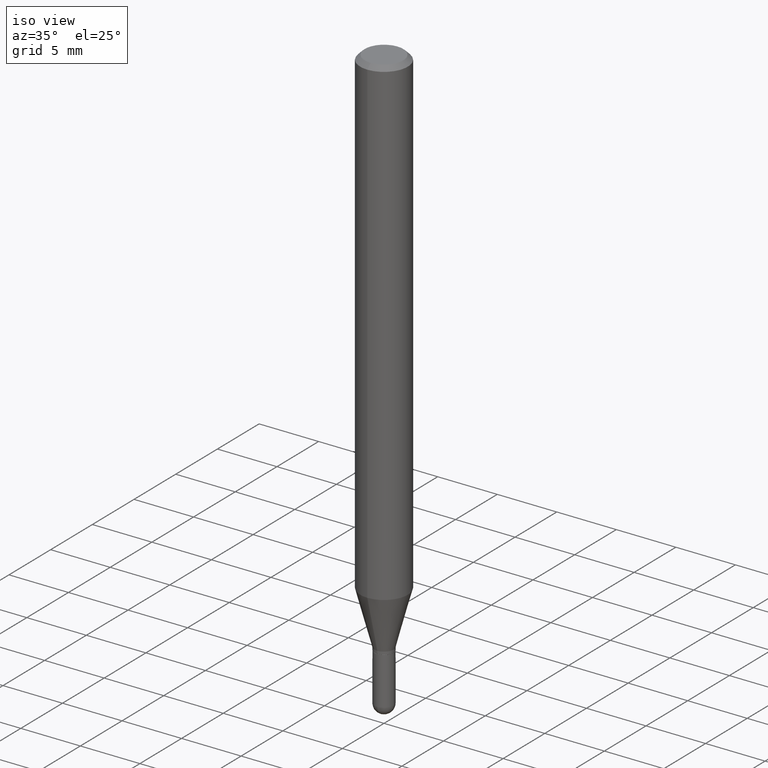
[diagram: clean part render]
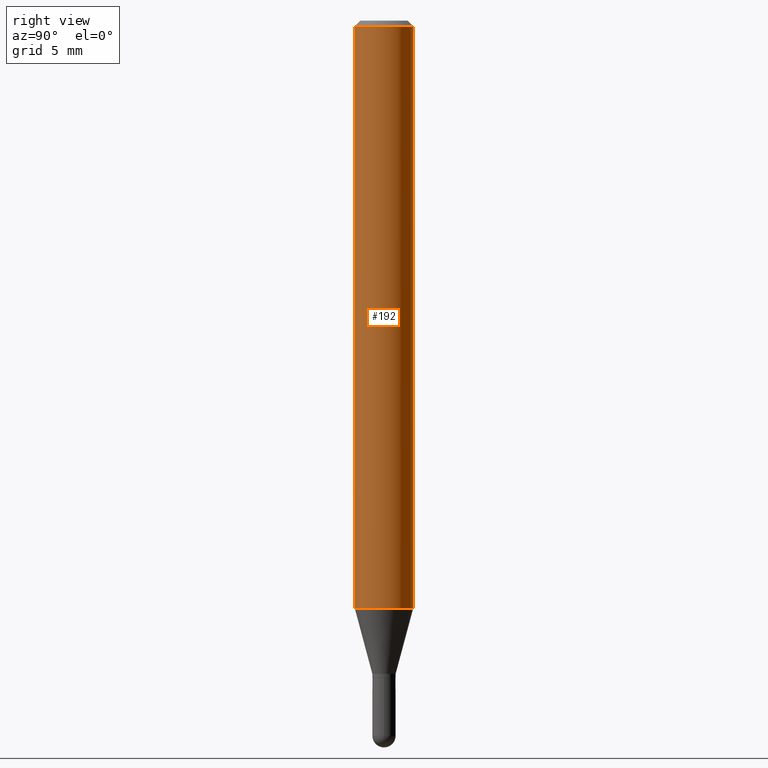
[diagram: tour spotlight — one face highlighted and labeled with its STEP entity id]
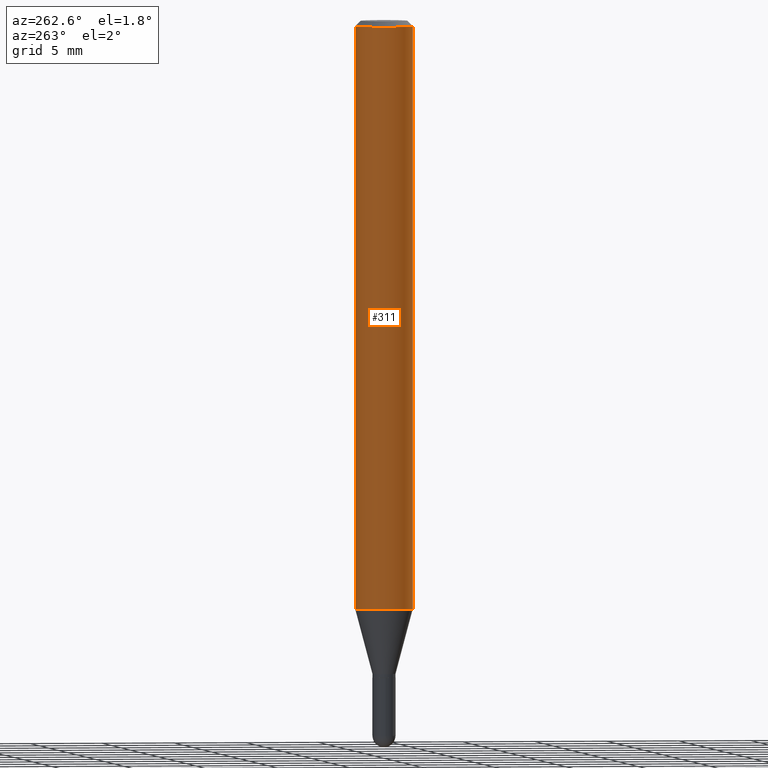
[diagram: tour spotlight — one face highlighted and labeled with its STEP entity id]
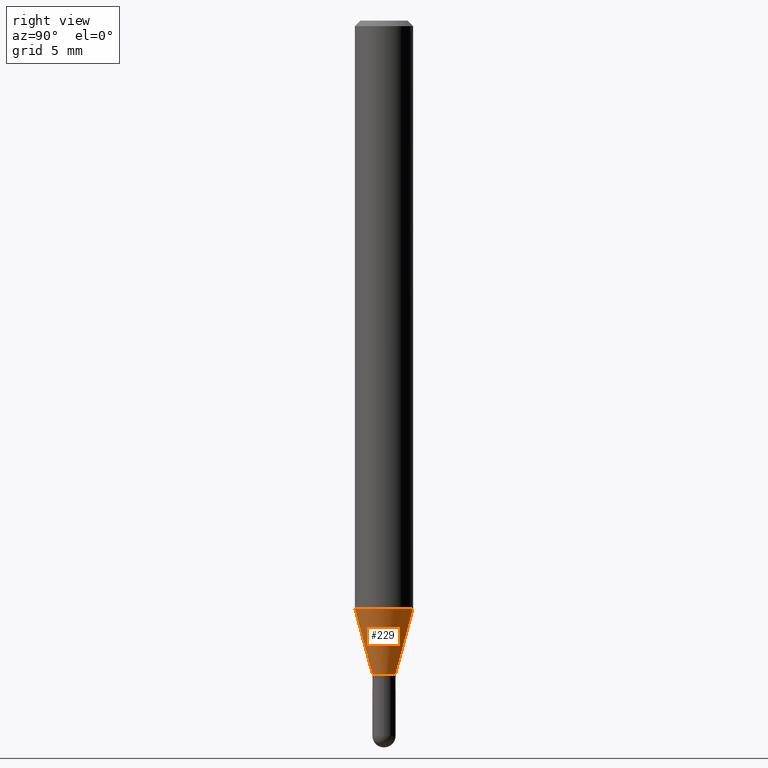
[diagram: tour spotlight — one face highlighted and labeled with its STEP entity id]
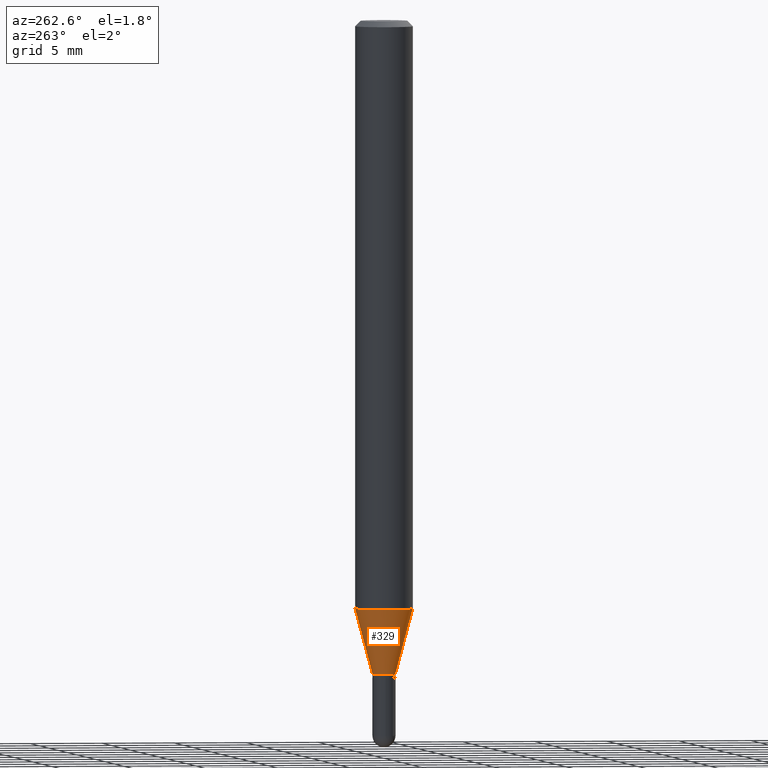
[diagram: tour spotlight — one face highlighted and labeled with its STEP entity id]
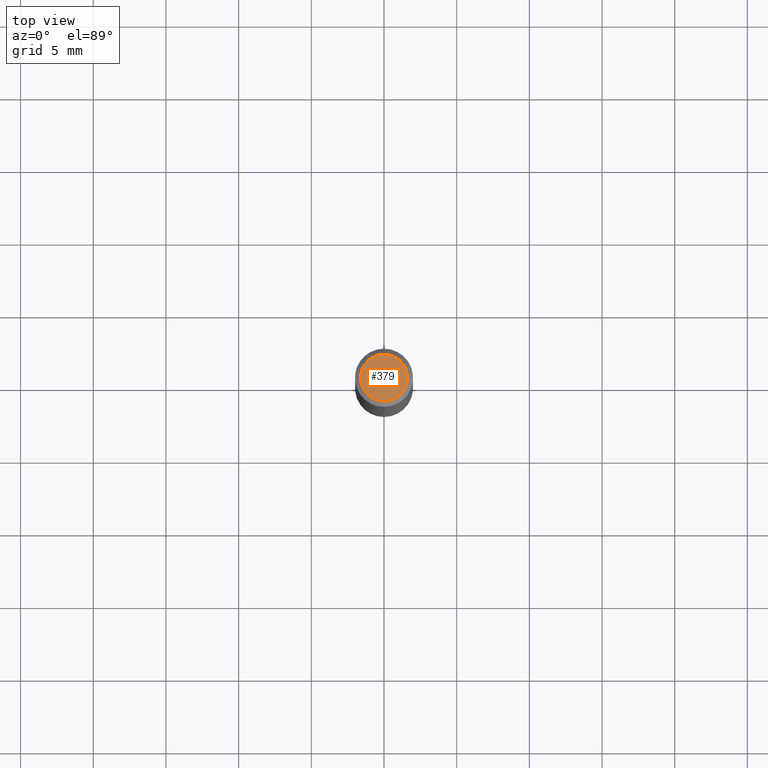
[diagram: tour spotlight — one face highlighted and labeled with its STEP entity id]
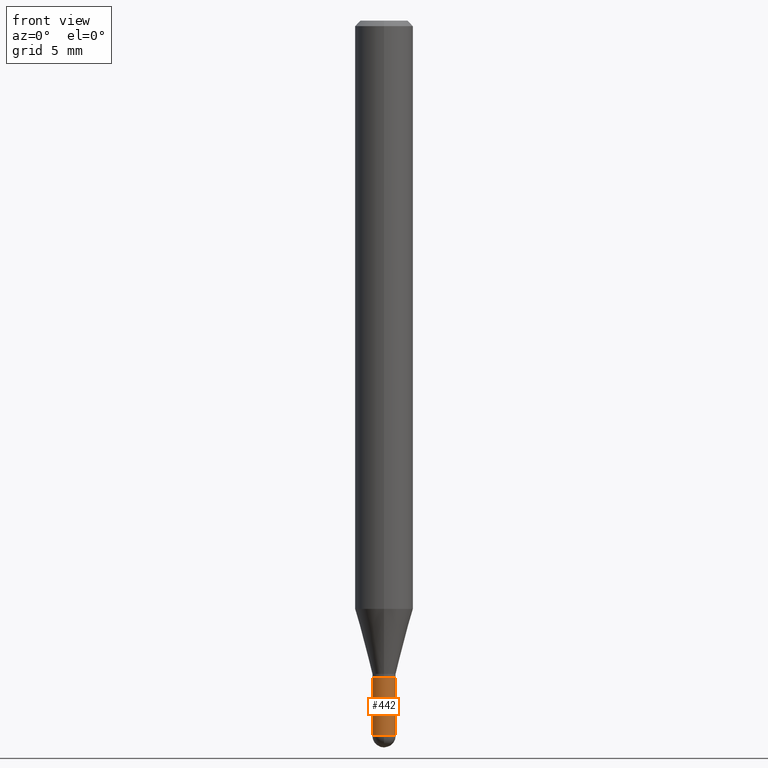
[diagram: tour spotlight — one face highlighted and labeled with its STEP entity id]
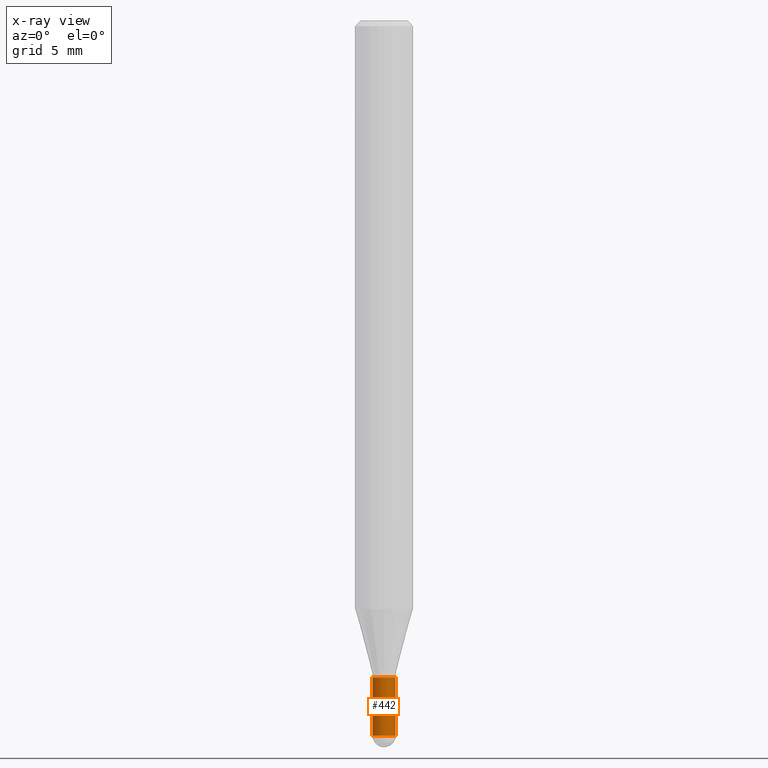
[diagram: x-ray of the same camera — body ghosted, this tour face saturated]
A machine part: a face-by-face anatomy tour. The part has 17 B-rep faces; the first image is the clean iso view, then the 6 largest visible faces are spotlighted one at a time (largest first), each with its STEP entity span.

Face 1 — right view, entity #192. In plain terms, the highlighted cylindrical surface (edge-blend (fillet) strip) has radius 2.0002 mm, axis along (-0, 0, 1).
Definition (entity closure, byte-faithful):
#8 = CARTESIAN_POINT ( 'NONE',  ( 3.668279301993772364E-31, -5.237113039164392563E-17, -0.01500000000000001679 ) ) ;
#10 = CARTESIAN_POINT ( 'NONE',  ( 3.896105367546402533E-29, -5.562374765532584086E-15, -1.593160599342370087 ) ) ;
#23 = VERTEX_POINT ( 'NONE', #470 ) ;
#29 = EDGE_CURVE ( 'NONE', #23, #171, #501, .T. ) ;
#30 = CARTESIAN_POINT ( 'NONE',  ( 5.595524044110787031E-16, 0.07875000000000000056, -2.749484345561302999E-16 ) ) ;
#31 = DIRECTION ( 'NONE',  ( -2.445519534662512469E-29, 3.491408692776257814E-15, 1.000000000000000000 ) ) ;
#36 = CIRCLE ( 'NONE', #488, 0.07875000000000000056 ) ;
#47 = AXIS2_PLACEMENT_3D ( 'NONE', #8, #359, #283 ) ;
#90 = VECTOR ( 'NONE', #121, 39.37007874015748143 ) ;
#102 = VECTOR ( 'NONE', #224, 39.37007874015748143 ) ;
#121 = DIRECTION ( 'NONE',  ( -2.445519534662512469E-29, 3.491408692776257814E-15, 1.000000000000000000 ) ) ;
#137 = DIRECTION ( 'NONE',  ( -2.445519534662512469E-29, 3.491408692776257814E-15, 1.000000000000000000 ) ) ;
#156 = LINE ( 'NONE', #355, #90 ) ;
#160 = EDGE_CURVE ( 'NONE', #335, #378, #156, .T. ) ;
#171 = VERTEX_POINT ( 'NONE', #244 ) ;
#182 = ORIENTED_EDGE ( 'NONE', *, *, #434, .F. ) ;
#192 = ADVANCED_FACE ( 'NONE', ( #305 ), #274, .T. ) ;
#224 = DIRECTION ( 'NONE',  ( -2.445519534662512469E-29, 3.491408692776257814E-15, 1.000000000000000000 ) ) ;
#232 = CARTESIAN_POINT ( 'NONE',  ( 0.000000000000000000, 0.000000000000000000, 0.000000000000000000 ) ) ;
#244 = CARTESIAN_POINT ( 'NONE',  ( 5.595524044111180475E-16, 0.07874999999999994504, -0.01500000000000029261 ) ) ;
#250 = CARTESIAN_POINT ( 'NONE',  ( -5.499083108677930499E-16, -0.07875000000000004219, -0.01499999999999974097 ) ) ;
#271 = CIRCLE ( 'NONE', #47, 0.07875000000000000056 ) ;
#274 = CYLINDRICAL_SURFACE ( 'NONE', #306, 0.07875000000000000056 ) ;
#283 = DIRECTION ( 'NONE',  ( -6.982962677686264344E-15, -1.000000000000000000, 3.496114991891765576E-15 ) ) ;
#305 = FACE_OUTER_BOUND ( 'NONE', #354, .T. ) ;
#306 = AXIS2_PLACEMENT_3D ( 'NONE', #232, #31, #435 ) ;
#327 = DIRECTION ( 'NONE',  ( -6.982962677686264344E-15, -1.000000000000000000, 3.469013325287953293E-15 ) ) ;
#335 = VERTEX_POINT ( 'NONE', #364 ) ;
#345 = ORIENTED_EDGE ( 'NONE', *, *, #510, .T. ) ;
#354 = EDGE_LOOP ( 'NONE', ( #345, #381, #182, #380 ) ) ;
#355 = CARTESIAN_POINT ( 'NONE',  ( -5.499083108677933457E-16, -0.07875000000000000056, 2.749484345561302999E-16 ) ) ;
#359 = DIRECTION ( 'NONE',  ( -2.445519534662512469E-29, 3.491408692776257814E-15, 1.000000000000000000 ) ) ;
#364 = CARTESIAN_POINT ( 'NONE',  ( -5.499083108677546915E-16, -0.07875000000000557943, -1.593160599342369865 ) ) ;
#378 = VERTEX_POINT ( 'NONE', #250 ) ;
#380 = ORIENTED_EDGE ( 'NONE', *, *, #160, .F. ) ;
#381 = ORIENTED_EDGE ( 'NONE', *, *, #29, .T. ) ;
#434 = EDGE_CURVE ( 'NONE', #378, #171, #271, .T. ) ;
#435 = DIRECTION ( 'NONE',  ( -6.982962677686264344E-15, -1.000000000000000000, 3.491408692776257814E-15 ) ) ;
#470 = CARTESIAN_POINT ( 'NONE',  ( 5.595524044111174559E-16, 0.07874999999999439393, -1.593160599342370531 ) ) ;
#488 = AXIS2_PLACEMENT_3D ( 'NONE', #10, #137, #327 ) ;
#501 = LINE ( 'NONE', #30, #102 ) ;
#510 = EDGE_CURVE ( 'NONE', #335, #23, #36, .T. ) ;

Face 2 — auxiliary view, entity #311. In plain terms, the highlighted cylindrical surface (edge-blend (fillet) strip) has radius 2.0002 mm, axis along (-0, 0, 1).
Definition (entity closure, byte-faithful):
#23 = VERTEX_POINT ( 'NONE', #470 ) ;
#29 = EDGE_CURVE ( 'NONE', #23, #171, #501, .T. ) ;
#30 = CARTESIAN_POINT ( 'NONE',  ( 5.595524044110787031E-16, 0.07875000000000000056, -2.749484345561302999E-16 ) ) ;
#65 = EDGE_LOOP ( 'NONE', ( #483, #190, #145, #337 ) ) ;
#82 = AXIS2_PLACEMENT_3D ( 'NONE', #246, #358, #402 ) ;
#90 = VECTOR ( 'NONE', #121, 39.37007874015748143 ) ;
#102 = VECTOR ( 'NONE', #224, 39.37007874015748143 ) ;
#103 = CIRCLE ( 'NONE', #508, 0.07875000000000000056 ) ;
#121 = DIRECTION ( 'NONE',  ( -2.445519534662512469E-29, 3.491408692776257814E-15, 1.000000000000000000 ) ) ;
#145 = ORIENTED_EDGE ( 'NONE', *, *, #160, .T. ) ;
#156 = LINE ( 'NONE', #355, #90 ) ;
#160 = EDGE_CURVE ( 'NONE', #335, #378, #156, .T. ) ;
#171 = VERTEX_POINT ( 'NONE', #244 ) ;
#175 = DIRECTION ( 'NONE',  ( -6.982962677686264344E-15, -1.000000000000000000, 3.496114991891765576E-15 ) ) ;
#177 = DIRECTION ( 'NONE',  ( -2.445519534662512469E-29, 3.491408692776257814E-15, 1.000000000000000000 ) ) ;
#190 = ORIENTED_EDGE ( 'NONE', *, *, #502, .T. ) ;
#204 = CARTESIAN_POINT ( 'NONE',  ( 3.668279301993772364E-31, -5.237113039164392563E-17, -0.01500000000000001679 ) ) ;
#215 = CIRCLE ( 'NONE', #298, 0.07875000000000000056 ) ;
#224 = DIRECTION ( 'NONE',  ( -2.445519534662512469E-29, 3.491408692776257814E-15, 1.000000000000000000 ) ) ;
#244 = CARTESIAN_POINT ( 'NONE',  ( 5.595524044111180475E-16, 0.07874999999999994504, -0.01500000000000029261 ) ) ;
#246 = CARTESIAN_POINT ( 'NONE',  ( 0.000000000000000000, 0.000000000000000000, 0.000000000000000000 ) ) ;
#250 = CARTESIAN_POINT ( 'NONE',  ( -5.499083108677930499E-16, -0.07875000000000004219, -0.01499999999999974097 ) ) ;
#257 = EDGE_CURVE ( 'NONE', #171, #378, #103, .T. ) ;
#289 = DIRECTION ( 'NONE',  ( -6.982962677686264344E-15, -1.000000000000000000, 3.469013325287953293E-15 ) ) ;
#298 = AXIS2_PLACEMENT_3D ( 'NONE', #489, #177, #289 ) ;
#311 = ADVANCED_FACE ( 'NONE', ( #317 ), #446, .T. ) ;
#317 = FACE_OUTER_BOUND ( 'NONE', #65, .T. ) ;
#335 = VERTEX_POINT ( 'NONE', #364 ) ;
#337 = ORIENTED_EDGE ( 'NONE', *, *, #257, .F. ) ;
#355 = CARTESIAN_POINT ( 'NONE',  ( -5.499083108677933457E-16, -0.07875000000000000056, 2.749484345561302999E-16 ) ) ;
#358 = DIRECTION ( 'NONE',  ( -2.445519534662512469E-29, 3.491408692776257814E-15, 1.000000000000000000 ) ) ;
#364 = CARTESIAN_POINT ( 'NONE',  ( -5.499083108677546915E-16, -0.07875000000000557943, -1.593160599342369865 ) ) ;
#378 = VERTEX_POINT ( 'NONE', #250 ) ;
#402 = DIRECTION ( 'NONE',  ( -6.982962677686264344E-15, -1.000000000000000000, 3.491408692776257814E-15 ) ) ;
#407 = DIRECTION ( 'NONE',  ( -2.445519534662512469E-29, 3.491408692776257814E-15, 1.000000000000000000 ) ) ;
#446 = CYLINDRICAL_SURFACE ( 'NONE', #82, 0.07875000000000000056 ) ;
#470 = CARTESIAN_POINT ( 'NONE',  ( 5.595524044111174559E-16, 0.07874999999999439393, -1.593160599342370531 ) ) ;
#483 = ORIENTED_EDGE ( 'NONE', *, *, #29, .F. ) ;
#489 = CARTESIAN_POINT ( 'NONE',  ( 3.896105367546402533E-29, -5.562374765532584086E-15, -1.593160599342370087 ) ) ;
#501 = LINE ( 'NONE', #30, #102 ) ;
#502 = EDGE_CURVE ( 'NONE', #23, #335, #215, .T. ) ;
#508 = AXIS2_PLACEMENT_3D ( 'NONE', #204, #407, #175 ) ;

Face 3 — right view, entity #229. In plain terms, the highlighted conical surface has half-angle 15 deg.
Definition (entity closure, byte-faithful):
#10 = CARTESIAN_POINT ( 'NONE',  ( 3.896105367546402533E-29, -5.562374765532584086E-15, -1.593160599342370087 ) ) ;
#20 = AXIS2_PLACEMENT_3D ( 'NONE', #150, #461, #106 ) ;
#23 = VERTEX_POINT ( 'NONE', #470 ) ;
#24 = ORIENTED_EDGE ( 'NONE', *, *, #105, .F. ) ;
#26 = CARTESIAN_POINT ( 'NONE',  ( -2.199633243470716336E-16, -0.03150000000000582195, -1.769500000000000073 ) ) ;
#36 = CIRCLE ( 'NONE', #488, 0.07875000000000000056 ) ;
#38 = FACE_OUTER_BOUND ( 'NONE', #396, .T. ) ;
#49 = DIRECTION ( 'NONE',  ( -2.445519534662512469E-29, 3.491408692776257814E-15, 1.000000000000000000 ) ) ;
#68 = EDGE_CURVE ( 'NONE', #506, #23, #197, .T. ) ;
#74 = EDGE_CURVE ( 'NONE', #101, #506, #469, .T. ) ;
#101 = VERTEX_POINT ( 'NONE', #26 ) ;
#105 = EDGE_CURVE ( 'NONE', #101, #335, #226, .T. ) ;
#106 = DIRECTION ( 'NONE',  ( -6.982962677686265922E-15, -1.000000000000000000, 0.000000000000000000 ) ) ;
#111 = CARTESIAN_POINT ( 'NONE',  ( -2.199633243470716336E-16, -0.03150000000000582195, -1.769500000000000073 ) ) ;
#132 = VECTOR ( 'NONE', #265, 39.37007874015748143 ) ;
#137 = DIRECTION ( 'NONE',  ( -2.445519534662512469E-29, 3.491408692776257814E-15, 1.000000000000000000 ) ) ;
#150 = CARTESIAN_POINT ( 'NONE',  ( 4.327346816585315421E-29, -6.178047681867588652E-15, -1.769500000000000073 ) ) ;
#153 = CARTESIAN_POINT ( 'NONE',  ( 2.238209617644722851E-16, 0.03149999999999347072, -1.769500000000000073 ) ) ;
#193 = AXIS2_PLACEMENT_3D ( 'NONE', #209, #49, #360 ) ;
#197 = LINE ( 'NONE', #153, #132 ) ;
#209 = CARTESIAN_POINT ( 'NONE',  ( 4.327346816585315421E-29, -6.178047681867588652E-15, -1.769500000000000073 ) ) ;
#212 = CARTESIAN_POINT ( 'NONE',  ( 3.916866830877951170E-16, 0.03149999999999346378, -1.769500000000000073 ) ) ;
#226 = LINE ( 'NONE', #111, #406 ) ;
#229 = ADVANCED_FACE ( 'NONE', ( #38 ), #394, .T. ) ;
#265 = DIRECTION ( 'NONE',  ( 1.839019923739603076E-15, 0.2588190451025253469, 0.9659258262890670910 ) ) ;
#301 = DIRECTION ( 'NONE',  ( -1.807323732225332900E-15, -0.2588190451025185745, 0.9659258262890689783 ) ) ;
#327 = DIRECTION ( 'NONE',  ( -6.982962677686264344E-15, -1.000000000000000000, 3.469013325287953293E-15 ) ) ;
#335 = VERTEX_POINT ( 'NONE', #364 ) ;
#357 = ORIENTED_EDGE ( 'NONE', *, *, #510, .F. ) ;
#360 = DIRECTION ( 'NONE',  ( -6.982962677686265922E-15, -1.000000000000000000, 0.000000000000000000 ) ) ;
#364 = CARTESIAN_POINT ( 'NONE',  ( -5.499083108677546915E-16, -0.07875000000000557943, -1.593160599342369865 ) ) ;
#367 = ORIENTED_EDGE ( 'NONE', *, *, #68, .T. ) ;
#374 = ORIENTED_EDGE ( 'NONE', *, *, #74, .T. ) ;
#394 = CONICAL_SURFACE ( 'NONE', #193, 0.03149999999999964634, 0.2617993877991506846 ) ;
#396 = EDGE_LOOP ( 'NONE', ( #374, #367, #357, #24 ) ) ;
#406 = VECTOR ( 'NONE', #301, 39.37007874015748143 ) ;
#461 = DIRECTION ( 'NONE',  ( -2.445519534662512469E-29, 3.491408692776257814E-15, 1.000000000000000000 ) ) ;
#469 = CIRCLE ( 'NONE', #20, 0.03149999999999964634 ) ;
#470 = CARTESIAN_POINT ( 'NONE',  ( 5.595524044111174559E-16, 0.07874999999999439393, -1.593160599342370531 ) ) ;
#488 = AXIS2_PLACEMENT_3D ( 'NONE', #10, #137, #327 ) ;
#506 = VERTEX_POINT ( 'NONE', #212 ) ;
#510 = EDGE_CURVE ( 'NONE', #335, #23, #36, .T. ) ;

Face 4 — auxiliary view, entity #329. In plain terms, the highlighted conical surface has half-angle 15 deg.
Definition (entity closure, byte-faithful):
#2 = FACE_OUTER_BOUND ( 'NONE', #425, .T. ) ;
#6 = DIRECTION ( 'NONE',  ( -6.982962677686265922E-15, -1.000000000000000000, 0.000000000000000000 ) ) ;
#9 = DIRECTION ( 'NONE',  ( -2.445519534662512469E-29, 3.491408692776257814E-15, 1.000000000000000000 ) ) ;
#23 = VERTEX_POINT ( 'NONE', #470 ) ;
#26 = CARTESIAN_POINT ( 'NONE',  ( -2.199633243470716336E-16, -0.03150000000000582195, -1.769500000000000073 ) ) ;
#27 = AXIS2_PLACEMENT_3D ( 'NONE', #363, #9, #6 ) ;
#68 = EDGE_CURVE ( 'NONE', #506, #23, #197, .T. ) ;
#99 = ORIENTED_EDGE ( 'NONE', *, *, #502, .F. ) ;
#101 = VERTEX_POINT ( 'NONE', #26 ) ;
#105 = EDGE_CURVE ( 'NONE', #101, #335, #226, .T. ) ;
#111 = CARTESIAN_POINT ( 'NONE',  ( -2.199633243470716336E-16, -0.03150000000000582195, -1.769500000000000073 ) ) ;
#132 = VECTOR ( 'NONE', #265, 39.37007874015748143 ) ;
#153 = CARTESIAN_POINT ( 'NONE',  ( 2.238209617644722851E-16, 0.03149999999999347072, -1.769500000000000073 ) ) ;
#169 = DIRECTION ( 'NONE',  ( -2.445519534662512469E-29, 3.491408692776257814E-15, 1.000000000000000000 ) ) ;
#177 = DIRECTION ( 'NONE',  ( -2.445519534662512469E-29, 3.491408692776257814E-15, 1.000000000000000000 ) ) ;
#178 = CIRCLE ( 'NONE', #27, 0.03149999999999964634 ) ;
#197 = LINE ( 'NONE', #153, #132 ) ;
#212 = CARTESIAN_POINT ( 'NONE',  ( 3.916866830877951170E-16, 0.03149999999999346378, -1.769500000000000073 ) ) ;
#215 = CIRCLE ( 'NONE', #298, 0.07875000000000000056 ) ;
#223 = ORIENTED_EDGE ( 'NONE', *, *, #68, .F. ) ;
#226 = LINE ( 'NONE', #111, #406 ) ;
#265 = DIRECTION ( 'NONE',  ( 1.839019923739603076E-15, 0.2588190451025253469, 0.9659258262890670910 ) ) ;
#278 = CONICAL_SURFACE ( 'NONE', #449, 0.03149999999999964634, 0.2617993877991506846 ) ;
#286 = EDGE_CURVE ( 'NONE', #506, #101, #178, .T. ) ;
#289 = DIRECTION ( 'NONE',  ( -6.982962677686264344E-15, -1.000000000000000000, 3.469013325287953293E-15 ) ) ;
#298 = AXIS2_PLACEMENT_3D ( 'NONE', #489, #177, #289 ) ;
#301 = DIRECTION ( 'NONE',  ( -1.807323732225332900E-15, -0.2588190451025185745, 0.9659258262890689783 ) ) ;
#329 = ADVANCED_FACE ( 'NONE', ( #2 ), #278, .T. ) ;
#335 = VERTEX_POINT ( 'NONE', #364 ) ;
#352 = ORIENTED_EDGE ( 'NONE', *, *, #105, .T. ) ;
#356 = CARTESIAN_POINT ( 'NONE',  ( 4.327346816585315421E-29, -6.178047681867588652E-15, -1.769500000000000073 ) ) ;
#363 = CARTESIAN_POINT ( 'NONE',  ( 4.327346816585315421E-29, -6.178047681867588652E-15, -1.769500000000000073 ) ) ;
#364 = CARTESIAN_POINT ( 'NONE',  ( -5.499083108677546915E-16, -0.07875000000000557943, -1.593160599342369865 ) ) ;
#406 = VECTOR ( 'NONE', #301, 39.37007874015748143 ) ;
#425 = EDGE_LOOP ( 'NONE', ( #223, #448, #352, #99 ) ) ;
#448 = ORIENTED_EDGE ( 'NONE', *, *, #286, .T. ) ;
#449 = AXIS2_PLACEMENT_3D ( 'NONE', #356, #169, #512 ) ;
#470 = CARTESIAN_POINT ( 'NONE',  ( 5.595524044111174559E-16, 0.07874999999999439393, -1.593160599342370531 ) ) ;
#489 = CARTESIAN_POINT ( 'NONE',  ( 3.896105367546402533E-29, -5.562374765532584086E-15, -1.593160599342370087 ) ) ;
#502 = EDGE_CURVE ( 'NONE', #23, #335, #215, .T. ) ;
#506 = VERTEX_POINT ( 'NONE', #212 ) ;
#512 = DIRECTION ( 'NONE',  ( -6.982962677686265922E-15, -1.000000000000000000, 0.000000000000000000 ) ) ;

Face 5 — top view, entity #379. In plain terms, the highlighted planar face has unit normal (0, -0, -1).
Definition (entity closure, byte-faithful):
#28 = DIRECTION ( 'NONE',  ( -6.982962677686265922E-15, -1.000000000000000000, 3.491408692776257420E-15 ) ) ;
#44 = EDGE_CURVE ( 'NONE', #312, #303, #384, .T. ) ;
#59 = AXIS2_PLACEMENT_3D ( 'NONE', #210, #166, #403 ) ;
#85 = CARTESIAN_POINT ( 'NONE',  ( 4.114624516032520270E-46, -5.874349233022489660E-32, -1.682515497305298993E-17 ) ) ;
#88 = CARTESIAN_POINT ( 'NONE',  ( 4.975360907851465623E-16, 0.06374999999999998723, -2.394024591375393642E-16 ) ) ;
#115 = DIRECTION ( 'NONE',  ( -2.445519534662512469E-29, 3.491408692776257814E-15, 1.000000000000000000 ) ) ;
#122 = AXIS2_PLACEMENT_3D ( 'NONE', #433, #115, #28 ) ;
#124 = FACE_OUTER_BOUND ( 'NONE', #330, .T. ) ;
#166 = DIRECTION ( 'NONE',  ( 2.445519534662512189E-29, -3.491408692776257814E-15, -1.000000000000000000 ) ) ;
#167 = CARTESIAN_POINT ( 'NONE',  ( -4.888104823412212925E-16, -0.06374999999999998723, 2.057521491914333720E-16 ) ) ;
#210 = CARTESIAN_POINT ( 'NONE',  ( 4.451638707024993845E-16, 0.06374999999999998723, -2.309898816510129093E-16 ) ) ;
#263 = AXIS2_PLACEMENT_3D ( 'NONE', #85, #441, #408 ) ;
#275 = PLANE ( 'NONE',  #59 ) ;
#303 = VERTEX_POINT ( 'NONE', #167 ) ;
#312 = VERTEX_POINT ( 'NONE', #88 ) ;
#325 = EDGE_CURVE ( 'NONE', #303, #312, #395, .T. ) ;
#330 = EDGE_LOOP ( 'NONE', ( #342, #503 ) ) ;
#342 = ORIENTED_EDGE ( 'NONE', *, *, #44, .T. ) ;
#379 = ADVANCED_FACE ( 'NONE', ( #124 ), #275, .F. ) ;
#384 = CIRCLE ( 'NONE', #122, 0.06374999999999998723 ) ;
#395 = CIRCLE ( 'NONE', #263, 0.06374999999999998723 ) ;
#403 = DIRECTION ( 'NONE',  ( 6.982962677686265922E-15, 1.000000000000000000, -3.491408692776257814E-15 ) ) ;
#408 = DIRECTION ( 'NONE',  ( -6.982962677686265922E-15, -1.000000000000000000, 3.491408692776257420E-15 ) ) ;
#433 = CARTESIAN_POINT ( 'NONE',  ( 4.114624516032520270E-46, -5.874349233022489660E-32, -1.682515497305298993E-17 ) ) ;
#441 = DIRECTION ( 'NONE',  ( -2.445519534662512469E-29, 3.491408692776257814E-15, 1.000000000000000000 ) ) ;
#503 = ORIENTED_EDGE ( 'NONE', *, *, #325, .T. ) ;

Face 6 — front view, entity #442. An x-ray twin of the same camera follows (body ghosted, this face saturated) — the face is partly hidden behind the body. In plain terms, the highlighted cylindrical surface (edge-blend (fillet) strip) has radius 0.8001 mm, axis along (-0, 0, 1).
Definition (entity closure, byte-faithful):
#7 = EDGE_CURVE ( 'NONE', #134, #237, #273, .T. ) ;
#11 = ORIENTED_EDGE ( 'NONE', *, *, #375, .T. ) ;
#34 = DIRECTION ( 'NONE',  ( -2.445468806185136597E-29, 3.491481338843145583E-15, 1.000000000000000000 ) ) ;
#39 = CARTESIAN_POINT ( 'NONE',  ( 0.000000000000000000, 0.000000000000000000, 0.000000000000000000 ) ) ;
#46 = DIRECTION ( 'NONE',  ( -2.445468806185136597E-29, 3.491481338843145583E-15, 1.000000000000000000 ) ) ;
#50 = DIRECTION ( 'NONE',  ( 1.000000000000000000, -6.982962677686254878E-15, 0.000000000000000000 ) ) ;
#78 = FACE_OUTER_BOUND ( 'NONE', #294, .T. ) ;
#96 = CIRCLE ( 'NONE', #284, 0.03150000000000000716 ) ;
#110 = ORIENTED_EDGE ( 'NONE', *, *, #453, .F. ) ;
#134 = VERTEX_POINT ( 'NONE', #507 ) ;
#161 = DIRECTION ( 'NONE',  ( -2.445468806185136877E-29, 3.491481338843145188E-15, 1.000000000000000000 ) ) ;
#172 = CARTESIAN_POINT ( 'NONE',  ( -0.03150000000000000022, -6.264224236140843425E-15, -1.779499999999999860 ) ) ;
#173 = CARTESIAN_POINT ( 'NONE',  ( -2.238209617643840806E-16, -0.03150000000000675177, -1.937000000000000055 ) ) ;
#202 = DIRECTION ( 'NONE',  ( 1.000000000000000000, -6.982962677686255667E-15, 0.000000000000000000 ) ) ;
#203 = EDGE_CURVE ( 'NONE', #213, #295, #437, .T. ) ;
#205 = DIRECTION ( 'NONE',  ( -2.445468806185136597E-29, 3.491481338843145583E-15, 1.000000000000000000 ) ) ;
#213 = VERTEX_POINT ( 'NONE', #397 ) ;
#214 = CIRCLE ( 'NONE', #316, 0.03150000000000000716 ) ;
#234 = CARTESIAN_POINT ( 'NONE',  ( 0.03150000000000000716, -2.199633243471174122E-16, 1.535995684375720062E-30 ) ) ;
#237 = VERTEX_POINT ( 'NONE', #172 ) ;
#243 = ORIENTED_EDGE ( 'NONE', *, *, #7, .F. ) ;
#270 = VECTOR ( 'NONE', #161, 39.37007874015748143 ) ;
#273 = LINE ( 'NONE', #426, #270 ) ;
#282 = CARTESIAN_POINT ( 'NONE',  ( 0.03150000000000000022, -6.433054366818493875E-15, -1.779499999999999860 ) ) ;
#284 = AXIS2_PLACEMENT_3D ( 'NONE', #313, #315, #398 ) ;
#294 = EDGE_LOOP ( 'NONE', ( #243, #11, #296, #338, #110 ) ) ;
#295 = VERTEX_POINT ( 'NONE', #282 ) ;
#296 = ORIENTED_EDGE ( 'NONE', *, *, #385, .T. ) ;
#313 = CARTESIAN_POINT ( 'NONE',  ( 4.736873077580609915E-29, -6.762999353339173038E-15, -1.937000000000000055 ) ) ;
#315 = DIRECTION ( 'NONE',  ( -2.445468806185136597E-29, 3.491481338843145583E-15, 1.000000000000000000 ) ) ;
#316 = AXIS2_PLACEMENT_3D ( 'NONE', #362, #46, #50 ) ;
#338 = ORIENTED_EDGE ( 'NONE', *, *, #203, .T. ) ;
#362 = CARTESIAN_POINT ( 'NONE',  ( 4.736873077580609915E-29, -6.762999353339173038E-15, -1.937000000000000055 ) ) ;
#375 = EDGE_CURVE ( 'NONE', #134, #460, #214, .T. ) ;
#377 = AXIS2_PLACEMENT_3D ( 'NONE', #474, #205, #202 ) ;
#385 = EDGE_CURVE ( 'NONE', #460, #213, #96, .T. ) ;
#392 = DIRECTION ( 'NONE',  ( -2.445468806185136877E-29, 3.491481338843145188E-15, 1.000000000000000000 ) ) ;
#397 = CARTESIAN_POINT ( 'NONE',  ( 0.03150000000000001410, -6.708008522252392915E-15, -1.937000000000000055 ) ) ;
#398 = DIRECTION ( 'NONE',  ( 1.000000000000000000, -6.982962677686254878E-15, 0.000000000000000000 ) ) ;
#416 = CIRCLE ( 'NONE', #377, 0.03150000000000000022 ) ;
#426 = CARTESIAN_POINT ( 'NONE',  ( -0.03150000000000000716, 2.238209617644316094E-16, -1.549464553430295502E-30 ) ) ;
#437 = LINE ( 'NONE', #234, #455 ) ;
#442 = ADVANCED_FACE ( 'NONE', ( #78 ), #447, .T. ) ;
#447 = CYLINDRICAL_SURFACE ( 'NONE', #450, 0.03150000000000000716 ) ;
#450 = AXIS2_PLACEMENT_3D ( 'NONE', #39, #34, #476 ) ;
#453 = EDGE_CURVE ( 'NONE', #237, #295, #416, .T. ) ;
#455 = VECTOR ( 'NONE', #392, 39.37007874015748143 ) ;
#460 = VERTEX_POINT ( 'NONE', #173 ) ;
#474 = CARTESIAN_POINT ( 'NONE',  ( 4.351711740606450879E-29, -6.213091042471377326E-15, -1.779499999999999860 ) ) ;
#476 = DIRECTION ( 'NONE',  ( 1.000000000000000000, -6.982962677686265133E-15, 4.876176775795935793E-29 ) ) ;
#507 = CARTESIAN_POINT ( 'NONE',  ( -0.03150000000000001410, -6.264224236140843425E-15, -1.937000000000000055 ) ) ;